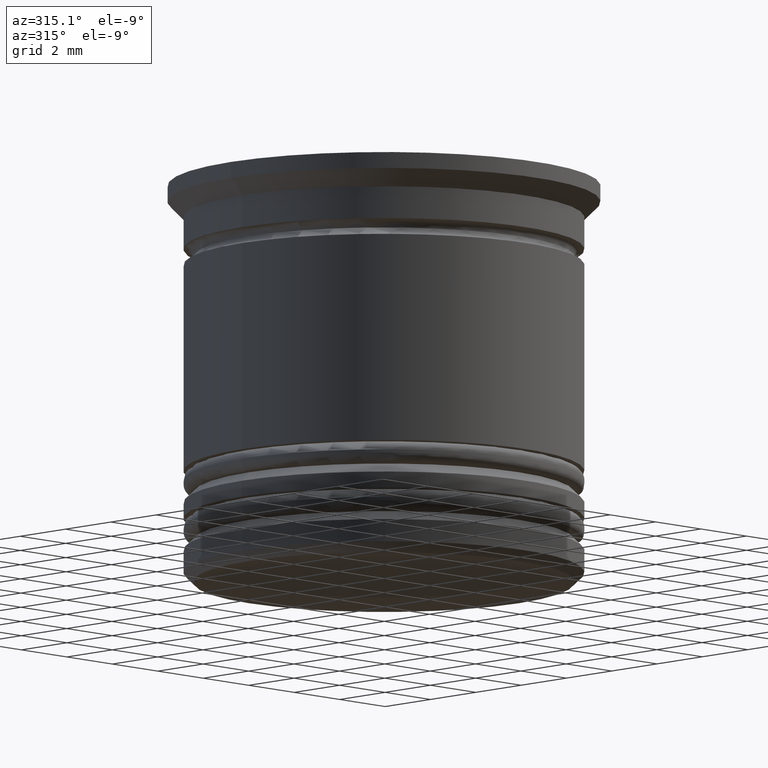
[diagram: clean part render]
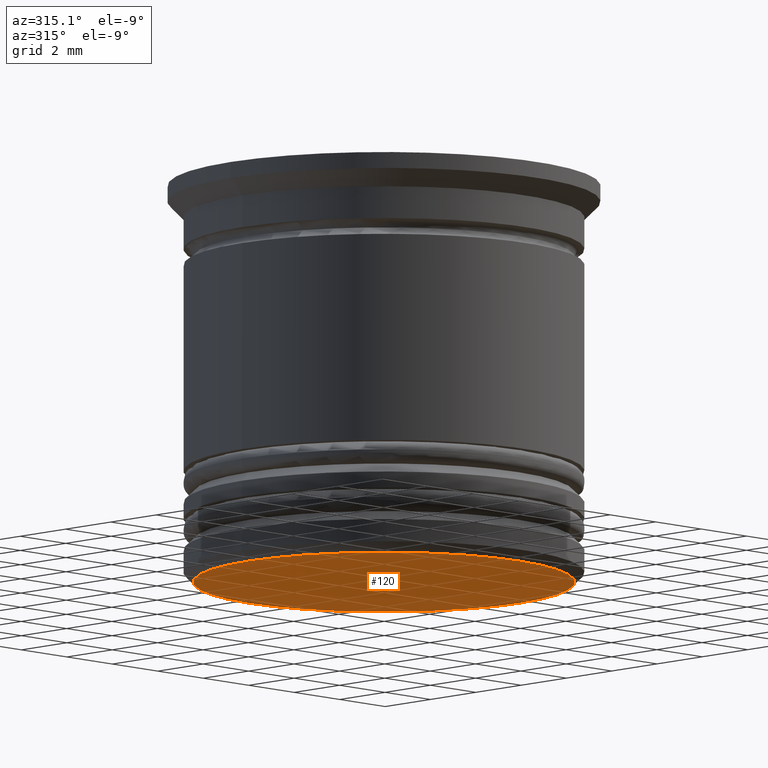
[diagram: same view with one face highlighted and labeled with its STEP entity id]
A machine part, auxiliary view. The second image highlights one B-rep face of the part: STEP entity #120.
In plain terms, the highlighted planar face has unit normal (0, 0, -1).
Its self-contained STEP definition (entity closure, byte-faithful):
#33 = DIRECTION ( 'NONE',  ( 0.000000000000000000, 0.000000000000000000, -1.000000000000000000 ) ) ;
#119 = ORIENTED_EDGE ( 'NONE', *, *, #280, .T. ) ;
#120 = ADVANCED_FACE ( 'NONE', ( #501 ), #1712, .T. ) ;
#145 = VERTEX_POINT ( 'NONE', #700 ) ;
#191 = AXIS2_PLACEMENT_3D ( 'NONE', #799, #33, #1914 ) ;
#280 = EDGE_CURVE ( 'NONE', #145, #594, #1531, .T. ) ;
#424 = ORIENTED_EDGE ( 'NONE', *, *, #1792, .T. ) ;
#501 = FACE_OUTER_BOUND ( 'NONE', #563, .T. ) ;
#563 = EDGE_LOOP ( 'NONE', ( #424, #119 ) ) ;
#594 = VERTEX_POINT ( 'NONE', #1072 ) ;
#619 = CIRCLE ( 'NONE', #1965, 5.950000000000001954 ) ;
#684 = AXIS2_PLACEMENT_3D ( 'NONE', #861, #1467, #1167 ) ;
#700 = CARTESIAN_POINT ( 'NONE',  ( -5.950000000000001954, 7.470345474798856265E-16, -12.50000000000000000 ) ) ;
#799 = CARTESIAN_POINT ( 'NONE',  ( 0.000000000000000000, 6.250000000000000888, -12.50000000000000000 ) ) ;
#861 = CARTESIAN_POINT ( 'NONE',  ( 0.000000000000000000, 0.000000000000000000, -12.50000000000000000 ) ) ;
#1072 = CARTESIAN_POINT ( 'NONE',  ( 5.950000000000001954, 0.000000000000000000, -12.50000000000000000 ) ) ;
#1167 = DIRECTION ( 'NONE',  ( -1.000000000000000000, 0.000000000000000000, 0.000000000000000000 ) ) ;
#1232 = CARTESIAN_POINT ( 'NONE',  ( 0.000000000000000000, 0.000000000000000000, -12.50000000000000000 ) ) ;
#1467 = DIRECTION ( 'NONE',  ( 0.000000000000000000, 0.000000000000000000, -1.000000000000000000 ) ) ;
#1531 = CIRCLE ( 'NONE', #684, 5.950000000000001954 ) ;
#1658 = DIRECTION ( 'NONE',  ( -1.000000000000000000, 0.000000000000000000, 0.000000000000000000 ) ) ;
#1671 = DIRECTION ( 'NONE',  ( 0.000000000000000000, 0.000000000000000000, -1.000000000000000000 ) ) ;
#1712 = PLANE ( 'NONE',  #191 ) ;
#1792 = EDGE_CURVE ( 'NONE', #594, #145, #619, .T. ) ;
#1914 = DIRECTION ( 'NONE',  ( -1.000000000000000000, 0.000000000000000000, -0.000000000000000000 ) ) ;
#1965 = AXIS2_PLACEMENT_3D ( 'NONE', #1232, #1671, #1658 ) ;